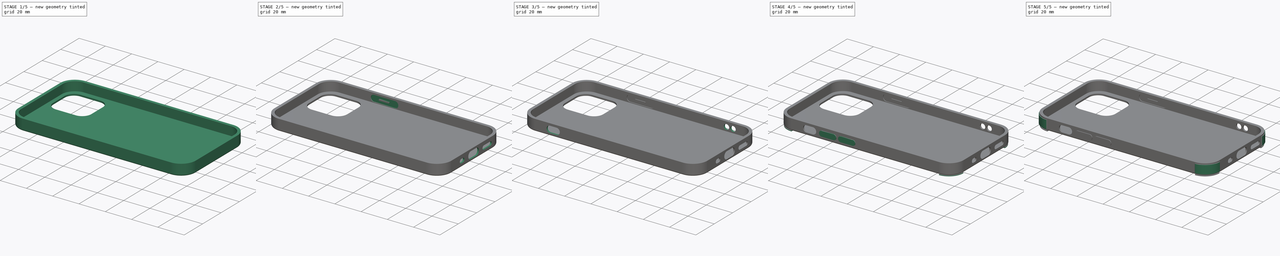
[diagram: build sequence overview — one tinted view per stage of 5, left to right]
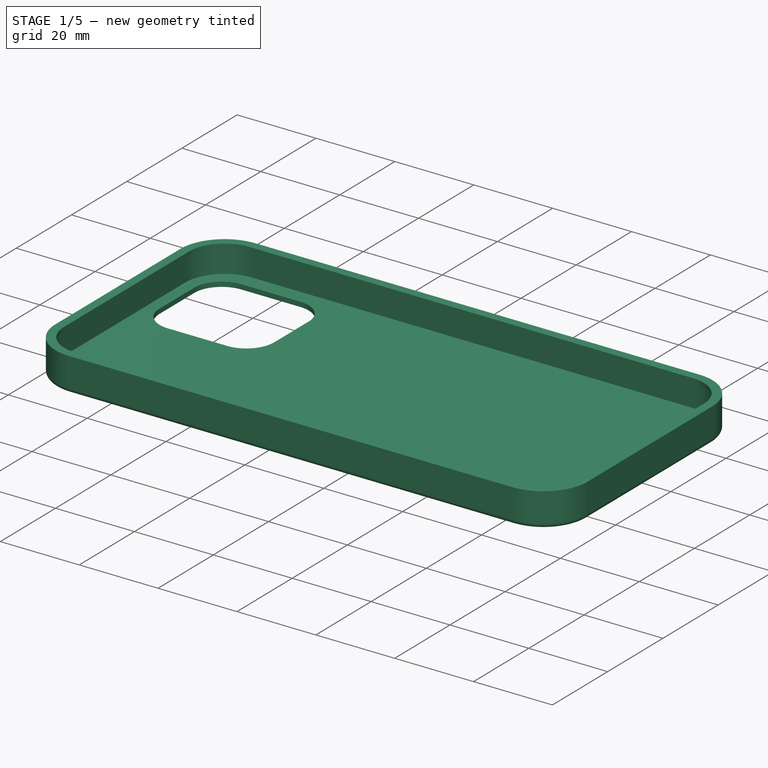
[diagram: stage 1 of 5 — iso view after this stage's code; geometry added in this stage tinted green]
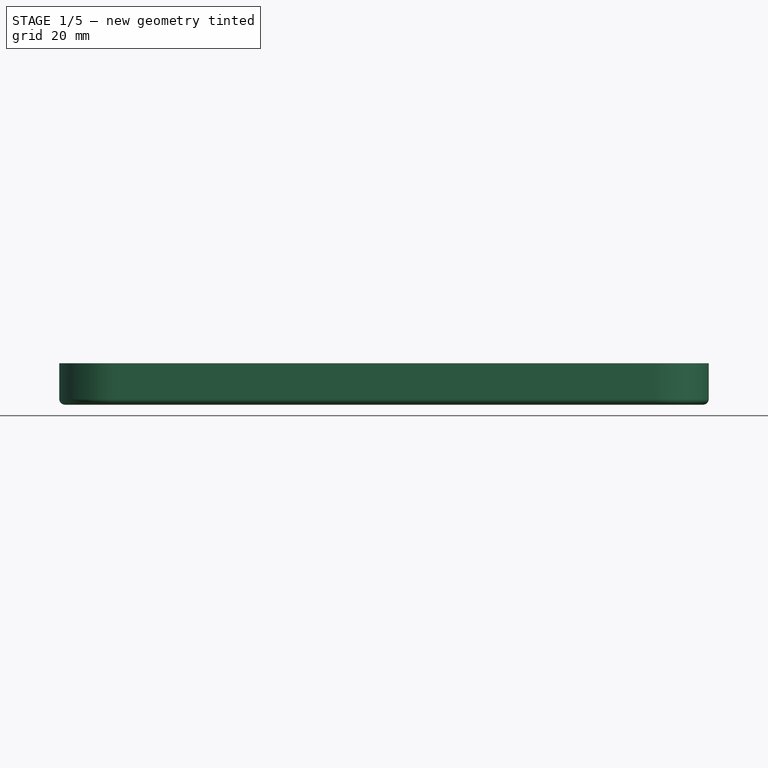
[diagram: stage 1 of 5 — front view after this stage's code; geometry added in this stage tinted green]
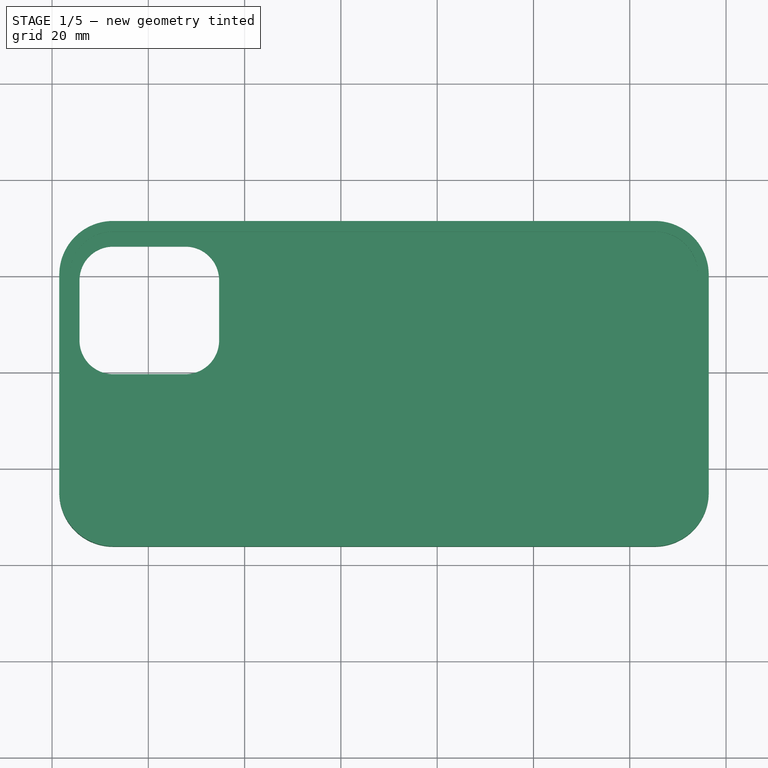
[diagram: stage 1 of 5 — top view after this stage's code; geometry added in this stage tinted green]
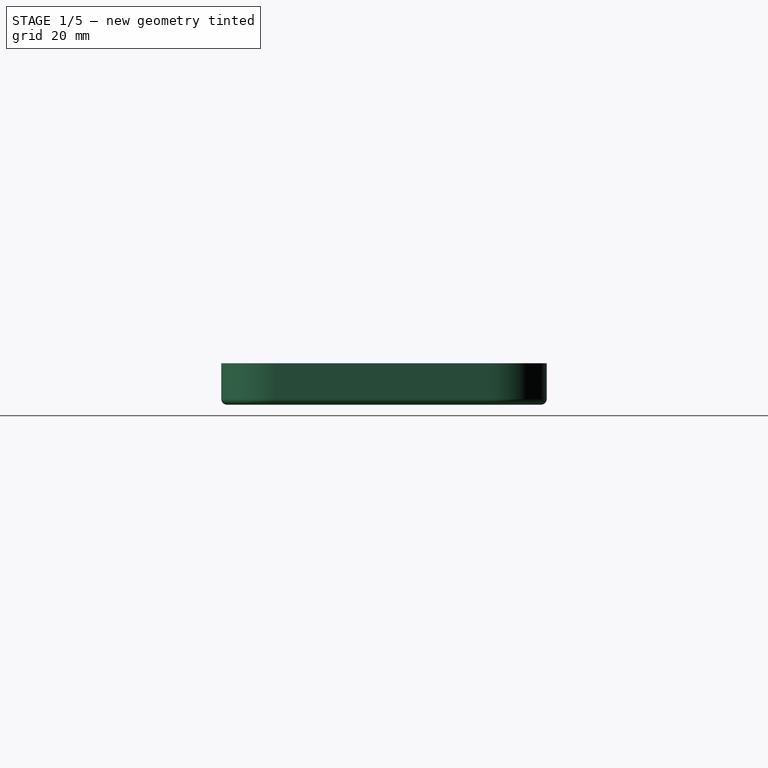
[diagram: stage 1 of 5 — right view after this stage's code; geometry added in this stage tinted green]
FCSTD DOCUMENT  (FreeCAD 0.19R23756 (Git))
Label: iPhone12mini+sakura+nyanko
License: All rights reserved
LicenseURL: http://en.wikipedia.org/wiki/All_rights_reserved
objects: Sketcher::SketchObject×14, PartDesign::Pad×12, PartDesign::Pocket×6, PartDesign::Thickness×1, PartDesign::Body×1
note: 53 computed .brp shape members not serialized (recipe doc carries the construction recipe); baked Part::Feature solids carry a one-line shape summary decoded from their .brp

FEATURE [Sketcher::SketchObject] Sketch001
  FullyConstrained = true
  MapMode = 5
  Support = -> [XY_Plane]
  sketch-geometry (8):
    g0: LineSegment StartX=-47.3 StartY=30.2 StartZ=0 EndX=65.2 EndY=30.2 EndZ=0
    g1: LineSegment StartX=75.2 StartY=20.2 StartZ=0 EndX=75.2 EndY=-25 EndZ=0
    g2: LineSegment StartX=65.2 StartY=-35 StartZ=0 EndX=-47.3 EndY=-35 EndZ=0
    g3: LineSegment StartX=-57.3 StartY=-25 StartZ=0 EndX=-57.3 EndY=20.2 EndZ=0
    g4: ArcOfCircle CenterX=65.2 CenterY=20.2 CenterZ=0 NormalX=0 NormalY=0 NormalZ=1 AngleXU=0 Radius=10 StartAngle=0 EndAngle=1.5708
    g5: ArcOfCircle CenterX=65.2 CenterY=-25 CenterZ=0 NormalX=0 NormalY=0 NormalZ=1 AngleXU=0 Radius=10 StartAngle=4.71239 EndAngle=6.28319
    g6: ArcOfCircle CenterX=-47.3 CenterY=-25 CenterZ=0 NormalX=0 NormalY=0 NormalZ=1 AngleXU=0 Radius=10 StartAngle=3.14159 EndAngle=4.71239
    g7: ArcOfCircle CenterX=-47.3 CenterY=20.2 CenterZ=0 NormalX=0 NormalY=0 NormalZ=1 AngleXU=0 Radius=10 StartAngle=1.5708 EndAngle=3.14159
  constraints (20):
    c: Horizontal(g0)
    c: Horizontal(g2)
    c: Vertical(g1)
    c: Vertical(g3)
    c: Tangent(g0,g4) = 1.5708
    c: Tangent(g1,g4) = 1.5708
    c: Tangent(g1,g5) = 1.5708
    c: Tangent(g2,g5) = 1.5708
    c: Tangent(g2,g6) = 1.5708
    c: Tangent(g3,g6) = 1.5708
    c: Tangent(g0,g7) = 1.5708
    c: Tangent(g3,g7) = 1.5708
    c: Radius(g4) = 10
    c: Radius(g5) = 10
    c: Radius(g6) = 10
    c: Radius(g7) = 10
    c: DistanceX(g3,g1) = 132.5
    c: DistanceX(g-1,g1) = 75.2
    c: DistanceY(g2,g0) = 65.2
    c: DistanceY(g2,g-1) = 35
FEATURE [PartDesign::Pad] Pad
  Direction = (1,1,1)
  Length = 7.4
  Length2 = 100
  Profile = -> Sketch001
  Type = 0
FEATURE [PartDesign::Thickness] Thickness
  Base = -> Pad [Face10]
  BaseFeature = -> Pad
  Intersection = false
  Join = 0
  Mode = 0
  SupportTransform = false
  Value = 1.2
FEATURE [Sketcher::SketchObject] Sketch002
  ExternalGeometry = -> [Thickness]
  FullyConstrained = true
  MapMode = 5
  Placement = pos=(0,0,7.4) rot=(0,0,1;0rad)
  Support = -> [Thickness]
  sketch-geometry (16):
    g0: LineSegment StartX=-47.3 StartY=31.4 StartZ=0 EndX=65.2 EndY=31.4 EndZ=0
    g1: LineSegment StartX=76.4 StartY=20.2 StartZ=0 EndX=76.4 EndY=-25 EndZ=0
    g2: LineSegment StartX=65.2 StartY=-36.2 StartZ=0 EndX=-47.3 EndY=-36.2 EndZ=0
    g3: LineSegment StartX=-58.5 StartY=-25 StartZ=0 EndX=-58.5 EndY=20.2 EndZ=0
    g4: ArcOfCircle CenterX=65.2 CenterY=20.2 CenterZ=0 NormalX=0 NormalY=0 NormalZ=1 AngleXU=0 Radius=11.2 StartAngle=2.387e-13 EndAngle=1.5708
    g5: ArcOfCircle CenterX=65.2 CenterY=-25 CenterZ=0 NormalX=0 NormalY=0 NormalZ=1 AngleXU=0 Radius=11.2 StartAngle=4.71239 EndAngle=6.28319
    g6: ArcOfCircle CenterX=-47.3 CenterY=-25 CenterZ=0 NormalX=0 NormalY=0 NormalZ=1 AngleXU=0 Radius=11.2 StartAngle=3.14159 EndAngle=4.71239
    g7: ArcOfCircle CenterX=-47.3 CenterY=20.2 CenterZ=0 NormalX=0 NormalY=0 NormalZ=1 AngleXU=0 Radius=11.2 StartAngle=1.5708 EndAngle=3.14159
    g8: LineSegment StartX=-47.3 StartY=29.2 StartZ=0 EndX=65.2 EndY=29.2 EndZ=0
    g9: LineSegment StartX=74.2 StartY=20.2 StartZ=0 EndX=74.2 EndY=-25 EndZ=0
    g10: LineSegment StartX=65.2 StartY=-34 StartZ=0 EndX=-47.3 EndY=-34 EndZ=0
    g11: LineSegment StartX=-56.3 StartY=-25 StartZ=0 EndX=-56.3 EndY=20.2 EndZ=0
    g12: ArcOfCircle CenterX=65.2 CenterY=20.2 CenterZ=0 NormalX=0 NormalY=0 NormalZ=1 AngleXU=0 Radius=9 StartAngle=0 EndAngle=1.5708
    g13: ArcOfCircle CenterX=65.2 CenterY=-25 CenterZ=0 NormalX=0 NormalY=0 NormalZ=1 AngleXU=0 Radius=9 StartAngle=4.71239 EndAngle=6.28319
    g14: ArcOfCircle CenterX=-47.3 CenterY=-25 CenterZ=0 NormalX=0 NormalY=0 NormalZ=1 AngleXU=0 Radius=9 StartAngle=3.14159 EndAngle=4.71239
    g15: ArcOfCircle CenterX=-47.3 CenterY=20.2 CenterZ=0 NormalX=0 NormalY=0 NormalZ=1 AngleXU=0 Radius=9 StartAngle=1.5708 EndAngle=3.14159
  constraints (31):
    c: Horizontal(g2)
    c: Vertical(g3)
    c: Tangent(g0,g4) = 1.5708
    c: Tangent(g1,g4) = 1.5708
    c: Tangent(g1,g5) = 1.5708
    c: Tangent(g2,g5) = 1.5708
    c: Tangent(g2,g6) = 1.5708
    c: Tangent(g3,g6) = 1.5708
    c: Tangent(g0,g7) = 1.5708
    c: Tangent(g3,g7) = 1.5708
    c: Coincident(g-7,g0)
    c: Coincident(g-8,g0)
    c: Coincident(g1,g-9)
    c: Coincident(g-10,g5)
    c: Coincident(g6,g-4)
    c: Horizontal(g8)
    c: Horizontal(g10)
    c: Vertical(g9)
    c: Tangent(g8,g12) = 1.5708
    c: Tangent(g9,g12) = 1.5708
    c: Tangent(g9,g13) = 1.5708
    c: Tangent(g10,g13) = 1.5708
    c: Tangent(g10,g14) = 1.5708
    c: Tangent(g11,g14) = 1.5708
    c: Tangent(g8,g15) = 1.5708
    c: Tangent(g11,g15) = 1.5708
    c: Coincident(g15,g7)
    c: DistanceX(g3,g11) = 2.2
    c: Coincident(g4,g12)
    c: Coincident(g5,g13)
    c: Coincident(g14,g6)
FEATURE [PartDesign::Pad] Pad001  label="Pad Base"
  BaseFeature = -> Thickness
  Direction = (1,1,1)
  Length = 1
  Length2 = 100
  Profile = -> Sketch002
  Reversed = true
  Type = 0
FEATURE [Sketcher::SketchObject] Sketch004  label="Sketch Camera"
  ExternalGeometry = -> [Pad001]
  FullyConstrained = true
  MapMode = 5
  Support = -> [Pad001]
  sketch-geometry (8):
    g0: LineSegment StartX=-47.3 StartY=26.2 StartZ=0 EndX=-32.3 EndY=26.2 EndZ=0
    g1: LineSegment StartX=-25.3 StartY=19.2 StartZ=0 EndX=-25.3 EndY=6.7 EndZ=0
    g2: LineSegment StartX=-32.3 StartY=-0.3 StartZ=0 EndX=-47.3 EndY=-0.3 EndZ=0
    g3: LineSegment StartX=-54.3 StartY=6.7 StartZ=0 EndX=-54.3 EndY=19.2 EndZ=0
    g4: ArcOfCircle CenterX=-32.3 CenterY=19.2 CenterZ=0 NormalX=0 NormalY=0 NormalZ=1 AngleXU=0 Radius=7 StartAngle=0 EndAngle=1.5708
    g5: ArcOfCircle CenterX=-32.3 CenterY=6.7 CenterZ=0 NormalX=0 NormalY=0 NormalZ=1 AngleXU=0 Radius=7 StartAngle=4.71239 EndAngle=6.28319
    g6: ArcOfCircle CenterX=-47.3 CenterY=6.7 CenterZ=0 NormalX=0 NormalY=0 NormalZ=1 AngleXU=0 Radius=7 StartAngle=3.14159 EndAngle=4.71239
    g7: ArcOfCircle CenterX=-47.3 CenterY=19.2 CenterZ=0 NormalX=0 NormalY=0 NormalZ=1 AngleXU=0 Radius=7 StartAngle=1.5708 EndAngle=3.14159
  constraints (20):
    c: Horizontal(g0)
    c: Horizontal(g2)
    c: Vertical(g1)
    c: Vertical(g3)
    c: Tangent(g0,g4) = 1.5708
    c: Tangent(g1,g4) = 1.5708
    c: Tangent(g1,g5) = 1.5708
    c: Tangent(g2,g5) = 1.5708
    c: Tangent(g2,g6) = 1.5708
    c: Tangent(g3,g6) = 1.5708
    c: Tangent(g0,g7) = 1.5708
    c: Tangent(g3,g7) = 1.5708
    c: Radius(g4) = 7
    c: Radius(g5) = 7
    c: Radius(g6) = 7
    c: Radius(g7) = 7
    c: DistanceY(g2,g0) = 26.5
    c: DistanceX(g3,g1) = 29
    c: DistanceY(g0,g-3) = 3
    c: DistanceX(g-6,g3) = 2
FEATURE [PartDesign::Pocket] Pocket001  label="Camera"
  BaseFeature = -> Pad001
  Length = 5
  Length2 = 100
  Profile = -> Sketch004
  Type = 0
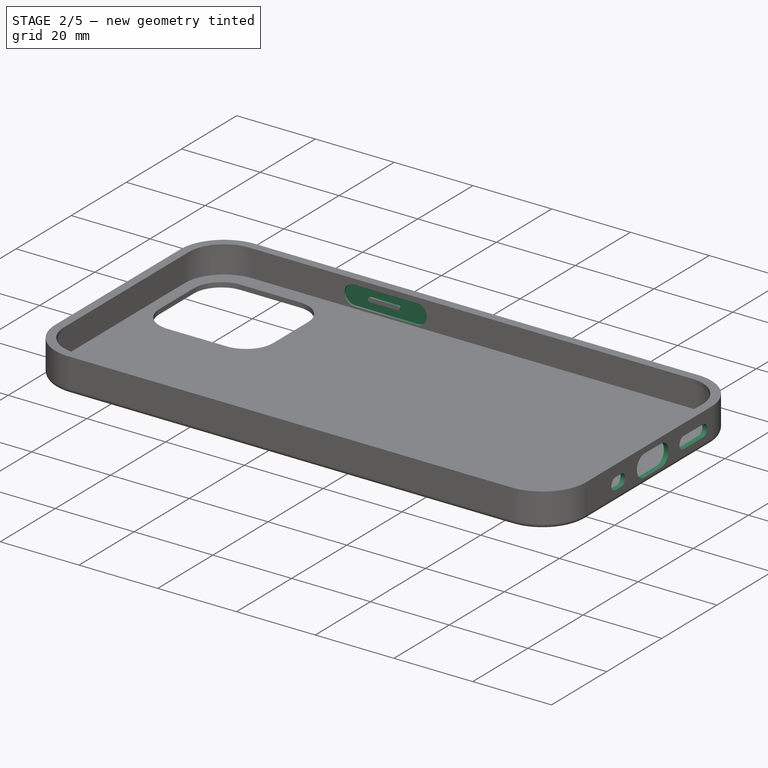
[diagram: stage 2 of 5 — iso view after this stage's code; geometry added in this stage tinted green]
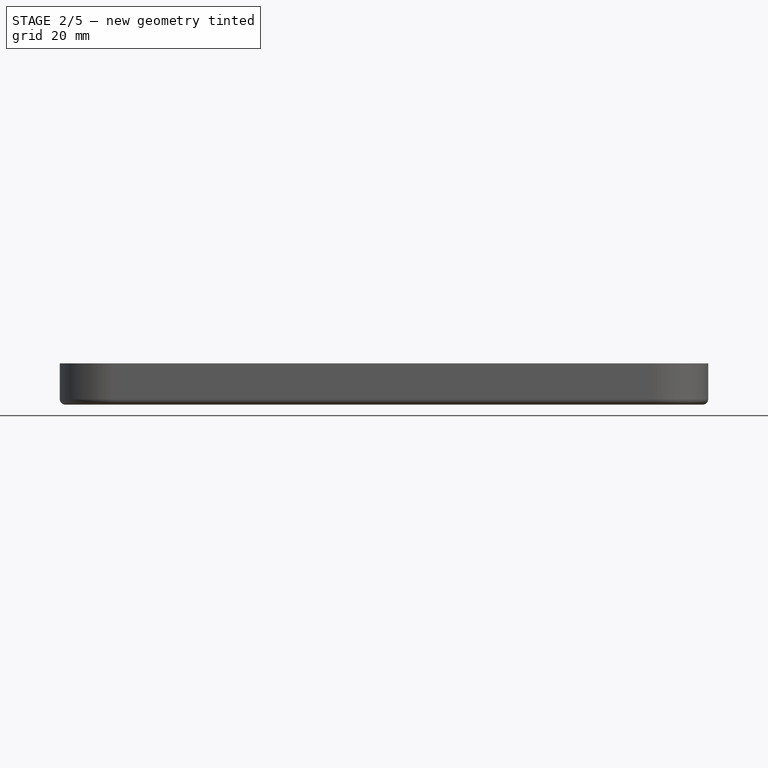
[diagram: stage 2 of 5 — front view after this stage's code; geometry added in this stage tinted green]
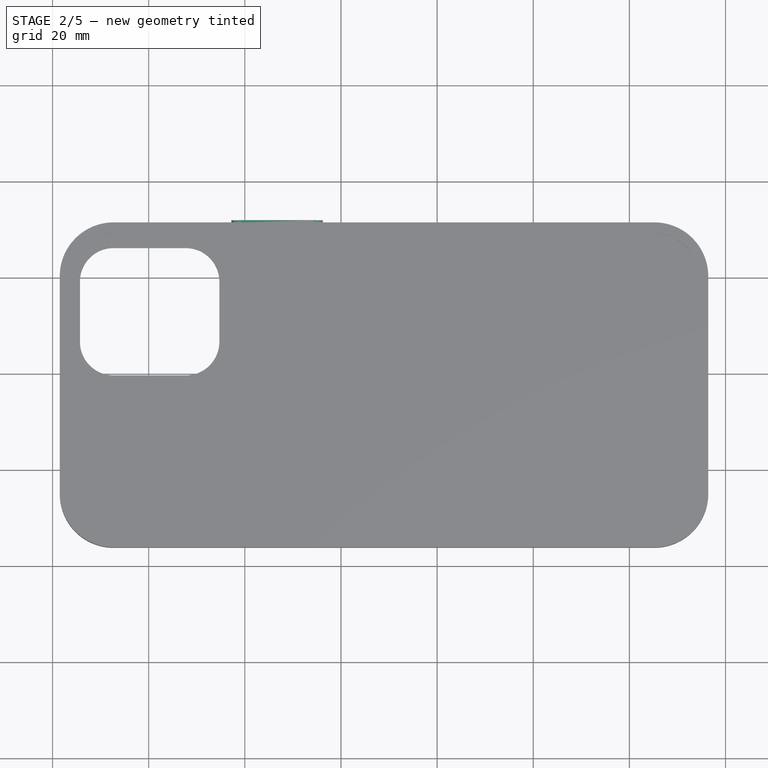
[diagram: stage 2 of 5 — top view after this stage's code; geometry added in this stage tinted green]
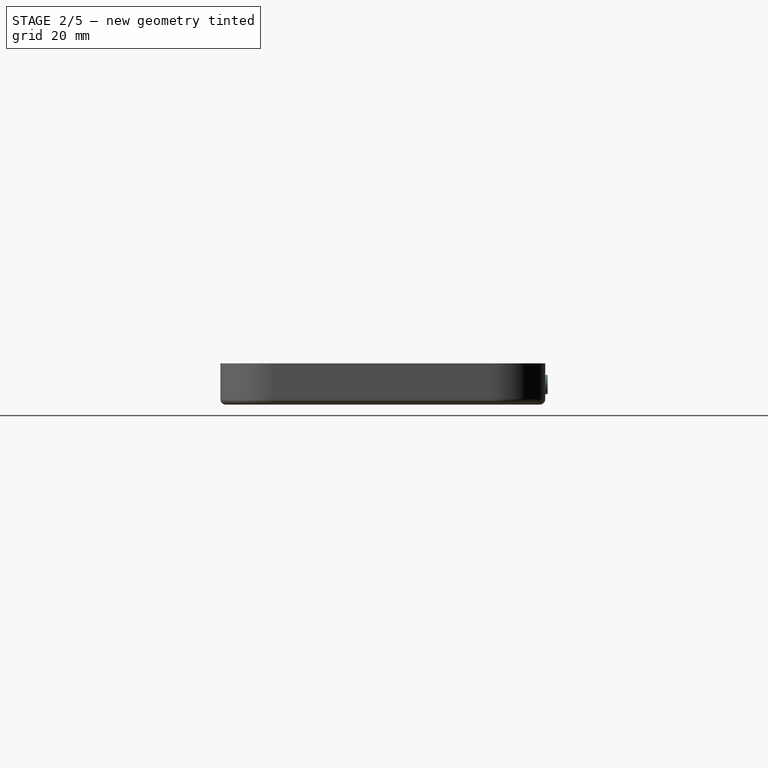
[diagram: stage 2 of 5 — right view after this stage's code; geometry added in this stage tinted green]
FEATURE [Sketcher::SketchObject] Sketch005  label="Righit Side"
  ExternalGeometry = -> [Pocket001]
  FullyConstrained = true
  MapMode = 5
  Placement = pos=(0,31.4,0) rot=(0,0.707107,0.707107;3.14159rad)
  Support = -> [Pocket001]
  sketch-geometry (4):
    g0: ArcOfCircle CenterX=5.8 CenterY=3 CenterZ=0 NormalX=0 NormalY=0 NormalZ=1 AngleXU=0 Radius=2 StartAngle=1.5708 EndAngle=4.71239
    g1: ArcOfCircle CenterX=20.8 CenterY=3 CenterZ=0 NormalX=0 NormalY=0 NormalZ=1 AngleXU=0 Radius=2 StartAngle=4.71239 EndAngle=7.85398
    g2: LineSegment StartX=5.8 StartY=1 StartZ=0 EndX=20.8 EndY=1 EndZ=0
    g3: LineSegment StartX=5.8 StartY=5 StartZ=0 EndX=20.8 EndY=5 EndZ=0
  constraints (10):
    c: Tangent(g0,g3) = 1.5708
    c: Tangent(g0,g2) = -1.5708
    c: Tangent(g2,g1) = -1.5708
    c: Tangent(g3,g1) = 1.5708
    c: Horizontal(g2)
    c: Equal(g0,g1)
    c: DistanceX(g0,g1) = 15
    c: DistanceY(g1,g1) = 4
    c: DistanceY(g-6,g1) = 1
    c: DistanceX(g1,g-5) = 26.5
FEATURE [Sketcher::SketchObject] Sketch006  label="Sketch Down Side"
  ExternalGeometry = -> [Pocket001]
  FullyConstrained = true
  MapMode = 5
  Placement = pos=(76.4,0,0) rot=(0.57735,0.57735,0.57735;2.0944rad)
  Support = -> [Pocket001]
  sketch-geometry (12):
    g0: ArcOfCircle CenterX=-14.5 CenterY=3 CenterZ=0 NormalX=0 NormalY=0 NormalZ=1 AngleXU=0 Radius=1.5 StartAngle=1.5708 EndAngle=4.71239
    g1: ArcOfCircle CenterX=-12.5 CenterY=3 CenterZ=0 NormalX=0 NormalY=0 NormalZ=1 AngleXU=0 Radius=1.5 StartAngle=4.71239 EndAngle=7.85398
    g2: LineSegment StartX=-14.5 StartY=1.5 StartZ=0 EndX=-12.5 EndY=1.5 EndZ=0
    g3: LineSegment StartX=-14.5 StartY=4.5 StartZ=0 EndX=-12.5 EndY=4.5 EndZ=0
    g4: ArcOfCircle CenterX=-4 CenterY=3.15 CenterZ=0 NormalX=0 NormalY=0 NormalZ=1 AngleXU=0 Radius=2.75 StartAngle=1.5708 EndAngle=4.71239
    g5: ArcOfCircle CenterX=2 CenterY=3.15 CenterZ=0 NormalX=0 NormalY=0 NormalZ=1 AngleXU=0 Radius=2.75 StartAngle=4.71239 EndAngle=7.85398
    g6: LineSegment StartX=-4 StartY=0.4 StartZ=0 EndX=2 EndY=0.4 EndZ=0
    g7: LineSegment StartX=-4 StartY=5.9 StartZ=0 EndX=2 EndY=5.9 EndZ=0
    g8: ArcOfCircle CenterX=10.2 CenterY=3 CenterZ=0 NormalX=0 NormalY=0 NormalZ=1 AngleXU=0 Radius=1.5 StartAngle=1.5708 EndAngle=4.71239
    g9: ArcOfCircle CenterX=17.2 CenterY=3 CenterZ=0 NormalX=0 NormalY=0 NormalZ=1 AngleXU=0 Radius=1.5 StartAngle=4.71239 EndAngle=7.85398
    g10: LineSegment StartX=10.2 StartY=1.5 StartZ=0 EndX=17.2 EndY=1.5 EndZ=0
    g11: LineSegment StartX=10.2 StartY=4.5 StartZ=0 EndX=17.2 EndY=4.5 EndZ=0
  constraints (31):
    c: Tangent(g0,g3) = 1.5708
    c: Tangent(g0,g2) = -1.5708
    c: Tangent(g2,g1) = -1.5708
    c: Tangent(g3,g1) = 1.5708
    c: Horizontal(g2)
    c: Equal(g0,g1)
    c: Tangent(g4,g7) = 1.5708
    c: Tangent(g4,g6) = -1.5708
    c: Tangent(g6,g5) = -1.5708
    c: Tangent(g7,g5) = 1.5708
    c: Horizontal(g6)
    c: Equal(g4,g5)
    c: Tangent(g8,g11) = 1.5708
    c: Tangent(g8,g10) = -1.5708
    c: Tangent(g10,g9) = -1.5708
    c: Tangent(g11,g9) = 1.5708
    c: Horizontal(g10)
    c: Equal(g8,g9)
    c: DistanceX(g-6,g4) = 21
    c: DistanceX(g4,g5) = 6
    c: DistanceY(g5,g5) = 5.5
    c: DistanceY(g5,g-4) = 0.5
    c: DistanceX(g-6,g0) = 10.5
    c: DistanceX(g0,g1) = 2
    c: DistanceX(g9,g-4) = 3
    c: DistanceX(g8,g9) = 7
    c: DistanceY(g-6,g0) = 1.5
    c: DistanceY(g9,g9) = 3
    c: DistanceY(g-5,g9) = 1.5
    c: DistanceY(g0,g0) = 3
    c: DistanceX(g-6,g-6) = 0
FEATURE [PartDesign::Pocket] Pocket002  label="Down Side"
  BaseFeature = -> Pocket001
  Length = 5
  Length2 = 100
  Profile = -> Sketch006
  Type = 0
FEATURE [Sketcher::SketchObject] Sketch007  label="Sketch Left Side"
  ExternalGeometry = -> [Pocket002]
  FullyConstrained = true
  MapMode = 5
  Placement = pos=(0,-36.2,0) rot=(1,0,0;1.5708rad)
  Support = -> [Pocket002]
  sketch-geometry (4):
    g0: ArcOfCircle CenterX=-35.8 CenterY=3.2 CenterZ=0 NormalX=0 NormalY=0 NormalZ=1 AngleXU=0 Radius=2.5 StartAngle=1.5708 EndAngle=4.71239
    g1: ArcOfCircle CenterX=-30.8 CenterY=3.2 CenterZ=0 NormalX=0 NormalY=0 NormalZ=1 AngleXU=0 Radius=2.5 StartAngle=4.71239 EndAngle=7.85398
    g2: LineSegment StartX=-35.8 StartY=0.7 StartZ=0 EndX=-30.8 EndY=0.7 EndZ=0
    g3: LineSegment StartX=-35.8 StartY=5.7 StartZ=0 EndX=-30.8 EndY=5.7 EndZ=0
  constraints (10):
    c: Tangent(g0,g3) = 1.5708
    c: Tangent(g0,g2) = -1.5708
    c: Tangent(g2,g1) = -1.5708
    c: Tangent(g3,g1) = 1.5708
    c: Horizontal(g2)
    c: Equal(g0,g1)
    c: DistanceX(g0,g1) = 5
    c: DistanceX(g-6,g0) = 11.5
    c: DistanceY(g0,g0) = 5
    c: DistanceY(g-6,g0) = 0.7
FEATURE [Sketcher::SketchObject] Sketch008  label="Sketch Right Inside"
  ExternalGeometry = -> [Pocket002,Pad001]
  FullyConstrained = true
  MapMode = 5
  Placement = pos=(0,30.2,0) rot=(1,0,0;1.5708rad)
  Support = -> [Pocket002]
  sketch-geometry (4):
    g0: ArcOfCircle CenterX=-21.3 CenterY=3 CenterZ=0 NormalX=0 NormalY=0 NormalZ=1 AngleXU=0 Radius=2.5 StartAngle=1.5708 EndAngle=4.71239
    g1: ArcOfCircle CenterX=-5.3 CenterY=3 CenterZ=0 NormalX=0 NormalY=0 NormalZ=1 AngleXU=0 Radius=2.5 StartAngle=4.71239 EndAngle=7.85398
    g2: LineSegment StartX=-21.3 StartY=0.5 StartZ=0 EndX=-5.3 EndY=0.5 EndZ=0
    g3: LineSegment StartX=-21.3 StartY=5.5 StartZ=0 EndX=-5.3 EndY=5.5 EndZ=0
  constraints (10):
    c: Tangent(g0,g3) = 1.5708
    c: Tangent(g0,g2) = -1.5708
    c: Tangent(g2,g1) = -1.5708
    c: Tangent(g3,g1) = 1.5708
    c: Horizontal(g2)
    c: Equal(g0,g1)
    c: DistanceX(g-6,g0) = 26
    c: DistanceY(g-7,g0) = 0.5
    c: DistanceY(g0,g0) = 2.5
    c: DistanceX(g0,g1) = 16
FEATURE [PartDesign::Pocket] Pocket003  label="Pocket Righit Inside"
  BaseFeature = -> Pocket002
  Length = 0.5
  Length2 = 100
  Profile = -> Sketch008
  Type = 0
FEATURE [PartDesign::Pad] Pad002  label="Pad Right Side"
  BaseFeature = -> Pocket003
  Direction = (1,1,1)
  Length = 0.5
  Length2 = 100
  Profile = -> Sketch005
  Type = 0
FEATURE [Sketcher::SketchObject] Sketch009  label="Sketch Right Inside02"
  ExternalGeometry = -> [Pad002]
  FullyConstrained = true
  MapMode = 5
  Placement = pos=(0,30.7,0) rot=(1,0,0;1.5708rad)
  Support = -> [Pad002]
  sketch-geometry (4):
    g0: ArcOfCircle CenterX=-17.3 CenterY=3 CenterZ=0 NormalX=0 NormalY=0 NormalZ=1 AngleXU=0 Radius=0.5 StartAngle=1.5708 EndAngle=4.71239
    g1: ArcOfCircle CenterX=-10.3 CenterY=3 CenterZ=0 NormalX=0 NormalY=0 NormalZ=1 AngleXU=0 Radius=0.5 StartAngle=4.71239 EndAngle=7.85398
    g2: LineSegment StartX=-17.3 StartY=2.5 StartZ=0 EndX=-10.3 EndY=2.5 EndZ=0
    g3: LineSegment StartX=-17.3 StartY=3.5 StartZ=0 EndX=-10.3 EndY=3.5 EndZ=0
  constraints (10):
    c: Tangent(g0,g3) = 1.5708
    c: Tangent(g0,g2) = -1.5708
    c: Tangent(g2,g1) = -1.5708
    c: Tangent(g3,g1) = 1.5708
    c: Horizontal(g2)
    c: Equal(g0,g1)
    c: DistanceX(g0,g1) = 7
    c: DistanceX(g1,g-6) = 5
    c: DistanceY(g0,g0) = 1
    c: DistanceY(g-5,g0) = 2
FEATURE [PartDesign::Pad] Pad003  label="Pad Right Inside"
  BaseFeature = -> Pad002
  Direction = (1,1,1)
  Length = 0.5
  Length2 = 100
  Profile = -> Sketch009
  Type = 0
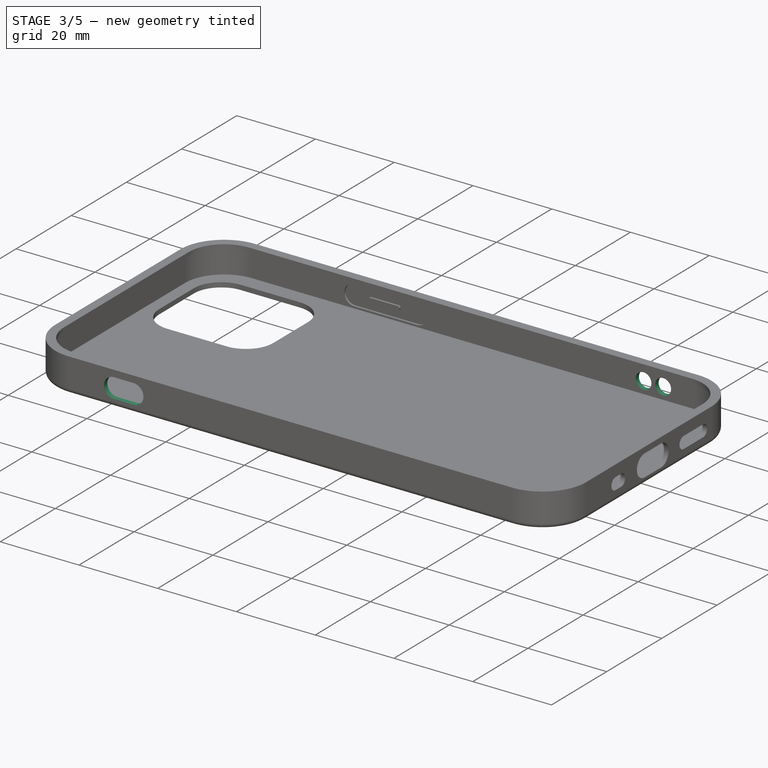
[diagram: stage 3 of 5 — iso view after this stage's code; geometry added in this stage tinted green]
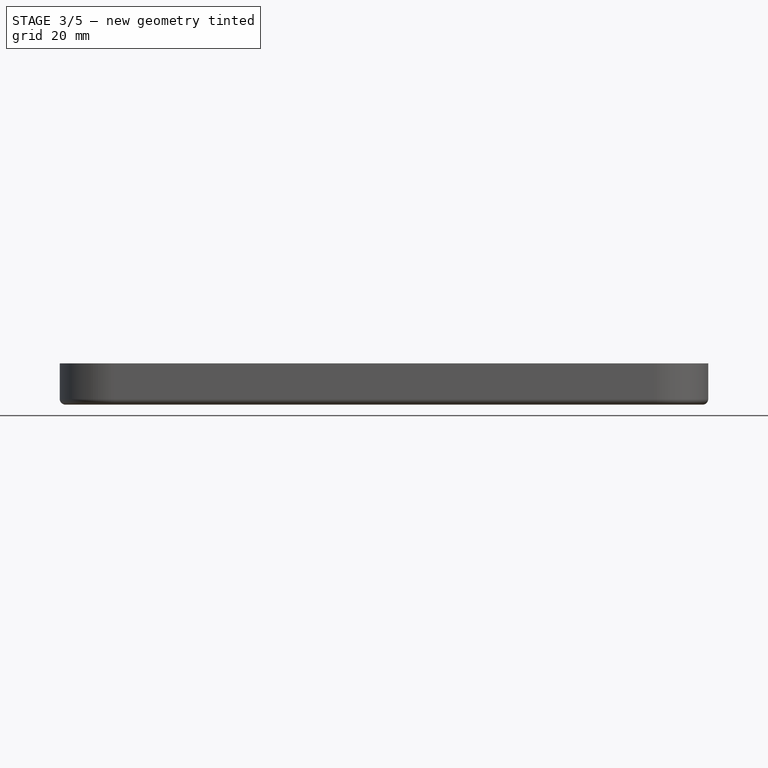
[diagram: stage 3 of 5 — front view after this stage's code; geometry added in this stage tinted green]
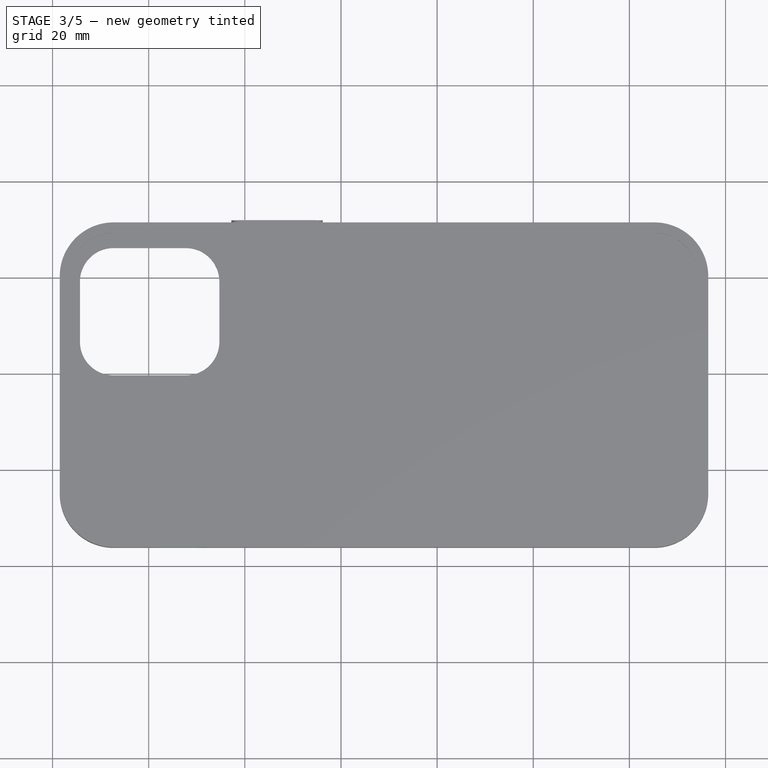
[diagram: stage 3 of 5 — top view after this stage's code; geometry added in this stage tinted green]
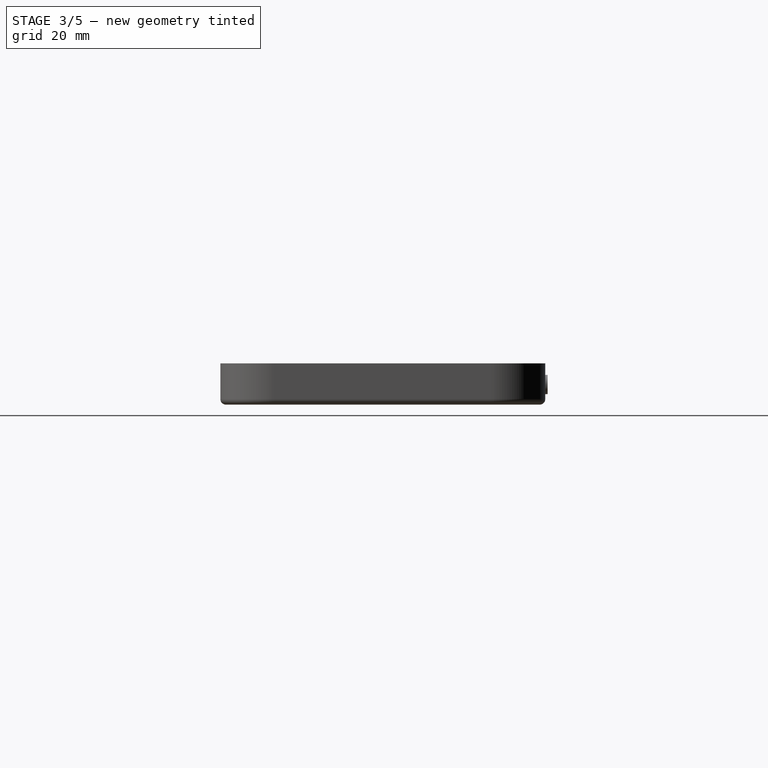
[diagram: stage 3 of 5 — right view after this stage's code; geometry added in this stage tinted green]
FEATURE [Sketcher::SketchObject] Sketch010  label="Sketch Strap"
  ExternalGeometry = -> [Pad003]
  FullyConstrained = true
  MapMode = 5
  Placement = pos=(0,31.4,0) rot=(0,0.707107,0.707107;3.14159rad)
  Support = -> [Pad003]
  sketch-geometry (2):
    g0: Circle CenterX=-57.2 CenterY=3 CenterZ=0 NormalX=0 NormalY=0 NormalZ=1 AngleXU=0 Radius=2
    g1: Circle CenterX=-52.2 CenterY=3 CenterZ=0 NormalX=0 NormalY=0 NormalZ=1 AngleXU=0 Radius=2
  constraints (6):
    c: Radius(g0) = 2
    c: Radius(g1) = 2
    c: DistanceX(g-6,g0) = 8
    c: DistanceX(g0,g1) = 5
    c: DistanceY(g-6,g0) = 3
    c: DistanceY(g-6,g1) = 3
FEATURE [PartDesign::Pocket] Pocket004  label="Pocket Strap"
  BaseFeature = -> Pad003
  Length = 5
  Length2 = 100
  Profile = -> Sketch010
  Type = 0
FEATURE [PartDesign::Pocket] Pocket005  label="Pocket Left Side"
  BaseFeature = -> Pocket004
  Length = 5
  Length2 = 100
  Profile = -> Sketch007
  Type = 0
FEATURE [Sketcher::SketchObject] Sketch012  label="Sketch Left Inside"
  ExternalGeometry = -> [Pocket005]
  FullyConstrained = true
  MapMode = 5
  Placement = pos=(0,-35,0) rot=(0,0.707107,0.707107;3.14159rad)
  Support = -> [Pocket005]
  sketch-geometry (4):
    g0: ArcOfCircle CenterX=0.8 CenterY=3.2 CenterZ=0 NormalX=0 NormalY=0 NormalZ=1 AngleXU=0 Radius=2.5 StartAngle=1.5708 EndAngle=4.71239
    g1: ArcOfCircle CenterX=23.8 CenterY=3.2 CenterZ=0 NormalX=0 NormalY=0 NormalZ=1 AngleXU=0 Radius=2.5 StartAngle=4.71239 EndAngle=7.85398
    g2: LineSegment StartX=0.8 StartY=0.7 StartZ=0 EndX=23.8 EndY=0.7 EndZ=0
    g3: LineSegment StartX=0.8 StartY=5.7 StartZ=0 EndX=23.8 EndY=5.7 EndZ=0
  constraints (10):
    c: Tangent(g0,g3) = 1.5708
    c: Tangent(g0,g2) = -1.5708
    c: Tangent(g2,g1) = -1.5708
    c: Tangent(g3,g1) = 1.5708
    c: Horizontal(g2)
    c: Equal(g0,g1)
    c: DistanceX(g0,g1) = 23
    c: DistanceX(g1,g-4) = 23.5
    c: DistanceY(g1,g1) = 5
    c: DistanceY(g-5,g1) = 0.7
FEATURE [PartDesign::Pocket] Pocket006  label="Pocket Left Inside"
  BaseFeature = -> Pocket005
  Length = 0.5
  Length2 = 100
  Profile = -> Sketch012
  Type = 0
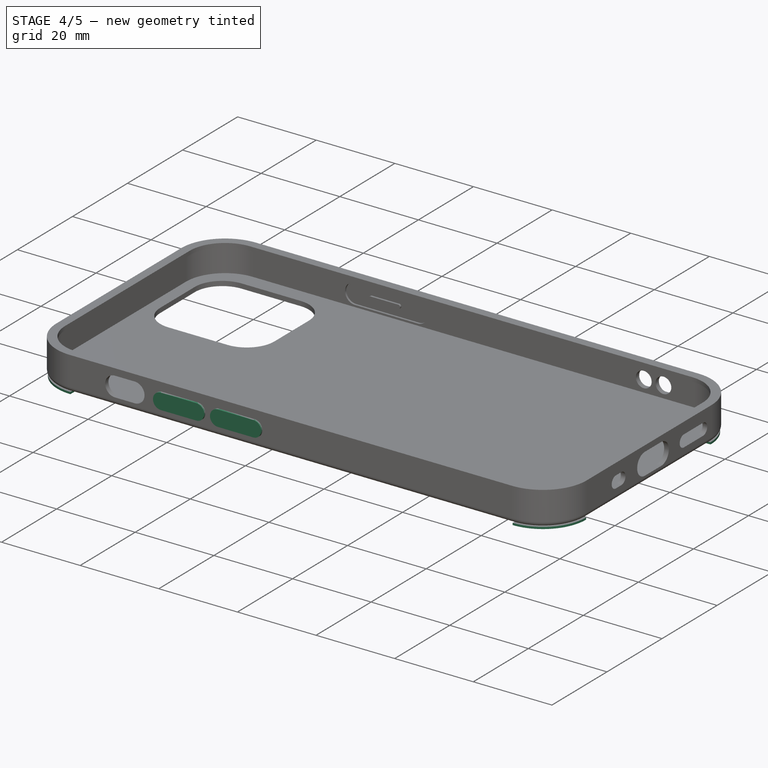
[diagram: stage 4 of 5 — iso view after this stage's code; geometry added in this stage tinted green]
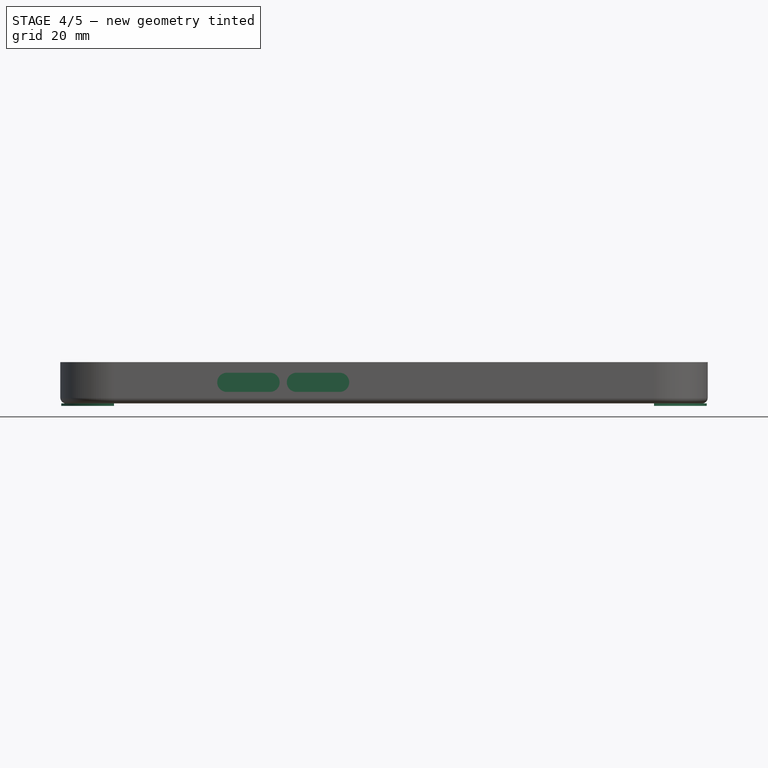
[diagram: stage 4 of 5 — front view after this stage's code; geometry added in this stage tinted green]
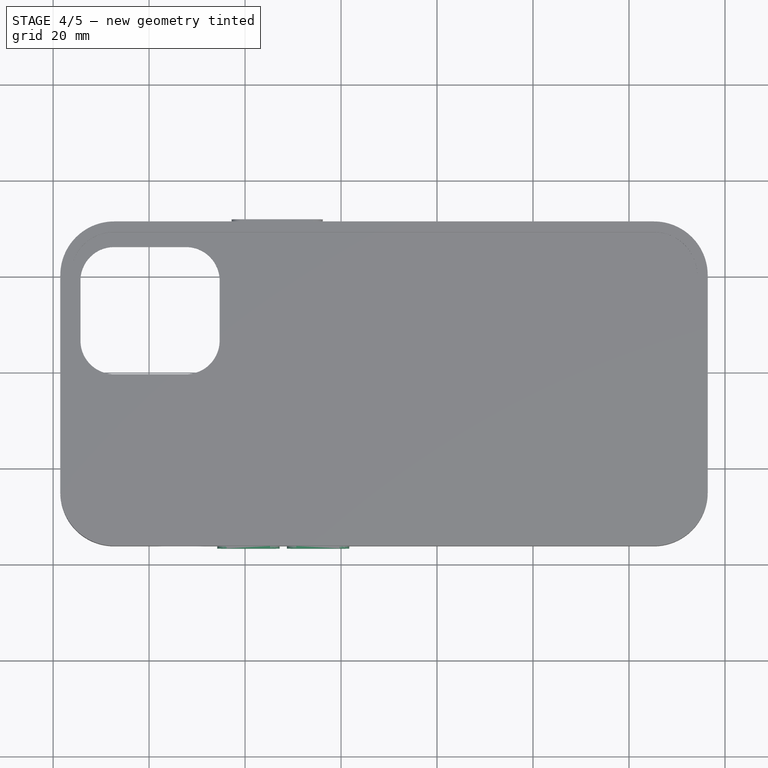
[diagram: stage 4 of 5 — top view after this stage's code; geometry added in this stage tinted green]
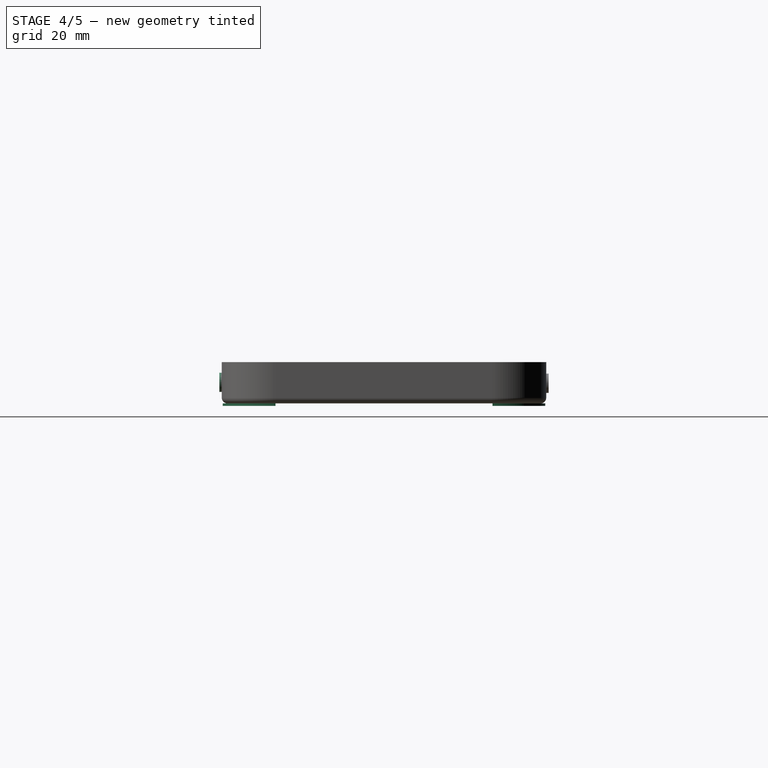
[diagram: stage 4 of 5 — right view after this stage's code; geometry added in this stage tinted green]
FEATURE [Sketcher::SketchObject] Sketch  label="Sketch Left Side2"
  ExternalGeometry = -> [Pad001]
  FullyConstrained = true
  MapMode = 5
  Placement = pos=(0,-36.2,0) rot=(1,0,0;1.5708rad)
  Support = -> [Pocket006]
  sketch-geometry (8):
    g0: ArcOfCircle CenterX=-9.3 CenterY=3.2 CenterZ=0 NormalX=0 NormalY=0 NormalZ=1 AngleXU=0 Radius=2 StartAngle=1.5708 EndAngle=4.71239
    g1: ArcOfCircle CenterX=-0.3 CenterY=3.2 CenterZ=0 NormalX=0 NormalY=0 NormalZ=1 AngleXU=0 Radius=2 StartAngle=4.71239 EndAngle=7.85398
    g2: LineSegment StartX=-9.3 StartY=1.2 StartZ=0 EndX=-0.3 EndY=1.2 EndZ=0
    g3: LineSegment StartX=-9.3 StartY=5.2 StartZ=0 EndX=-0.3 EndY=5.2 EndZ=0
    g4: ArcOfCircle CenterX=-23.8 CenterY=3.2 CenterZ=0 NormalX=0 NormalY=0 NormalZ=1 AngleXU=0 Radius=2 StartAngle=1.5708 EndAngle=4.71239
    g5: ArcOfCircle CenterX=-14.8 CenterY=3.2 CenterZ=0 NormalX=0 NormalY=0 NormalZ=1 AngleXU=0 Radius=2 StartAngle=4.71239 EndAngle=7.85398
    g6: LineSegment StartX=-23.8 StartY=1.2 StartZ=0 EndX=-14.8 EndY=1.2 EndZ=0
    g7: LineSegment StartX=-23.8 StartY=5.2 StartZ=0 EndX=-14.8 EndY=5.2 EndZ=0
  constraints (20):
    c: Tangent(g0,g3) = 1.5708
    c: Tangent(g0,g2) = -1.5708
    c: Tangent(g2,g1) = -1.5708
    c: Tangent(g3,g1) = 1.5708
    c: Horizontal(g2)
    c: Equal(g0,g1)
    c: Tangent(g4,g7) = 1.5708
    c: Tangent(g4,g6) = -1.5708
    c: Tangent(g6,g5) = -1.5708
    c: Tangent(g7,g5) = 1.5708
    c: Horizontal(g6)
    c: Equal(g4,g5)
    c: DistanceX(g0,g1) = 9
    c: DistanceX(g4,g5) = 9
    c: DistanceY(g0,g0) = 4
    c: DistanceY(g4,g4) = 4
    c: DistanceY(g-6,g0) = 1.2
    c: DistanceY(g-6,g4) = 1.2
    c: DistanceX(g-4,g4) = 23.5
    c: DistanceX(g-4,g0) = 38
FEATURE [PartDesign::Pad] Pad004  label="Pad Left Side2"
  BaseFeature = -> Pocket006
  Direction = (1,1,1)
  Length = 0.5
  Length2 = 100
  Profile = -> Sketch
  Type = 0
FEATURE [Sketcher::SketchObject] Sketch013  label="Sketch Left Inside2"
  ExternalGeometry = -> [Pad004]
  FullyConstrained = true
  MapMode = 5
  Placement = pos=(0,-35.5,0) rot=(0,0.707107,0.707107;3.14159rad)
  Support = -> [Pad004]
  sketch-geometry (8):
    g0: ArcOfCircle CenterX=15.8 CenterY=3.2 CenterZ=0 NormalX=0 NormalY=0 NormalZ=1 AngleXU=0 Radius=0.5 StartAngle=1.5708 EndAngle=4.71239
    g1: ArcOfCircle CenterX=22.8 CenterY=3.2 CenterZ=0 NormalX=0 NormalY=0 NormalZ=1 AngleXU=0 Radius=0.5 StartAngle=4.71239 EndAngle=7.85398
    g2: LineSegment StartX=15.8 StartY=2.7 StartZ=0 EndX=22.8 EndY=2.7 EndZ=0
    g3: LineSegment StartX=15.8 StartY=3.7 StartZ=0 EndX=22.8 EndY=3.7 EndZ=0
    g4: ArcOfCircle CenterX=1.3 CenterY=3.2 CenterZ=0 NormalX=0 NormalY=0 NormalZ=1 AngleXU=0 Radius=0.5 StartAngle=1.5708 EndAngle=4.71239
    g5: ArcOfCircle CenterX=8.3 CenterY=3.2 CenterZ=0 NormalX=0 NormalY=0 NormalZ=1 AngleXU=0 Radius=0.5 StartAngle=4.71239 EndAngle=7.85398
    g6: LineSegment StartX=1.3 StartY=2.7 StartZ=0 EndX=8.3 EndY=2.7 EndZ=0
    g7: LineSegment StartX=1.3 StartY=3.7 StartZ=0 EndX=8.3 EndY=3.7 EndZ=0
  constraints (20):
    c: Tangent(g0,g3) = 1.5708
    c: Tangent(g0,g2) = -1.5708
    c: Tangent(g2,g1) = -1.5708
    c: Tangent(g3,g1) = 1.5708
    c: Horizontal(g2)
    c: Equal(g0,g1)
    c: Tangent(g4,g7) = 1.5708
    c: Tangent(g4,g6) = -1.5708
    c: Tangent(g6,g5) = -1.5708
    c: Tangent(g7,g5) = 1.5708
    c: Horizontal(g6)
    c: Equal(g4,g5)
    c: DistanceY(g0,g0) = 1
    c: DistanceY(g4,g4) = 1
    c: DistanceY(g4,g-6) = 2.7
    c: DistanceY(g1,g-6) = 2.7
    c: DistanceX(g4,g5) = 7
    c: DistanceX(g0,g1) = 7
    c: DistanceX(g1,g-4) = 24.5
    c: DistanceX(g5,g-4) = 39
FEATURE [PartDesign::Pad] Pad005  label="Pad Left Inside2"
  BaseFeature = -> Pad004
  Direction = (1,1,1)
  Length = 0.5
  Length2 = 100
  Profile = -> Sketch013
  Type = 0
FEATURE [Sketcher::SketchObject] Sketch014  label="Sketch Camera Edge"
  ExternalGeometry = -> [Pocket001]
  FullyConstrained = true
  MapMode = 5
  Support = -> [Pocket001]
  sketch-geometry (16):
    g0: LineSegment StartX=-47.3 StartY=26.2 StartZ=0 EndX=-32.3 EndY=26.2 EndZ=0
    g1: LineSegment StartX=-25.3 StartY=19.2 StartZ=0 EndX=-25.3 EndY=6.7 EndZ=0
    g2: LineSegment StartX=-32.3 StartY=-0.3 StartZ=0 EndX=-47.3 EndY=-0.3 EndZ=0
    g3: LineSegment StartX=-54.3 StartY=6.7 StartZ=0 EndX=-54.3 EndY=19.2 EndZ=0
    g4: ArcOfCircle CenterX=-47.3 CenterY=19.2 CenterZ=0 NormalX=0 NormalY=0 NormalZ=1 AngleXU=0 Radius=7 StartAngle=1.5708 EndAngle=3.14159
    g5: ArcOfCircle CenterX=-32.3 CenterY=19.2 CenterZ=0 NormalX=0 NormalY=0 NormalZ=1 AngleXU=0 Radius=7 StartAngle=0 EndAngle=1.5708
    g6: ArcOfCircle CenterX=-32.3 CenterY=6.7 CenterZ=0 NormalX=0 NormalY=0 NormalZ=1 AngleXU=0 Radius=7 StartAngle=4.71239 EndAngle=6.28319
    g7: ArcOfCircle CenterX=-47.3 CenterY=6.7 CenterZ=0 NormalX=0 NormalY=0 NormalZ=1 AngleXU=0 Radius=7 StartAngle=3.14159 EndAngle=4.71239
    g8: LineSegment StartX=-47.3 StartY=26.7 StartZ=0 EndX=-32.3 EndY=26.7 EndZ=0
    g9: LineSegment StartX=-24.8 StartY=19.2 StartZ=0 EndX=-24.8 EndY=6.7 EndZ=0
    g10: LineSegment StartX=-32.3 StartY=-0.8 StartZ=0 EndX=-47.3 EndY=-0.8 EndZ=0
    g11: LineSegment StartX=-54.8 StartY=6.7 StartZ=0 EndX=-54.8 EndY=19.2 EndZ=0
    g12: ArcOfCircle CenterX=-47.3 CenterY=19.2 CenterZ=0 NormalX=0 NormalY=0 NormalZ=1 AngleXU=0 Radius=7.5 StartAngle=1.5708 EndAngle=3.14159
    g13: ArcOfCircle CenterX=-32.3 CenterY=19.2 CenterZ=0 NormalX=0 NormalY=0 NormalZ=1 AngleXU=0 Radius=7.5 StartAngle=0 EndAngle=1.5708
    g14: ArcOfCircle CenterX=-32.3 CenterY=6.7 CenterZ=0 NormalX=0 NormalY=0 NormalZ=1 AngleXU=0 Radius=7.5 StartAngle=4.71239 EndAngle=6.28319
    g15: ArcOfCircle CenterX=-47.3 CenterY=6.7 CenterZ=0 NormalX=0 NormalY=0 NormalZ=1 AngleXU=0 Radius=7.5 StartAngle=3.14159 EndAngle=4.71239
  constraints (31):
    c: Horizontal(g2)
    c: Vertical(g1)
    c: Tangent(g0,g4) = 1.5708
    c: Tangent(g3,g4) = 1.5708
    c: Tangent(g0,g5) = 1.5708
    c: Tangent(g1,g5) = 1.5708
    c: Tangent(g1,g6) = 1.5708
    c: Tangent(g2,g6) = 1.5708
    c: Tangent(g2,g7) = 1.5708
    c: Tangent(g3,g7) = 1.5708
    c: Coincident(g-13,g5)
    c: Coincident(g-15,g6)
    c: Coincident(g-17,g7)
    c: Coincident(g4,g-11)
    c: Coincident(g0,g-13)
    c: Horizontal(g8)
    c: Horizontal(g10)
    c: Vertical(g9)
    c: Tangent(g8,g12) = 1.5708
    c: Tangent(g11,g12) = 1.5708
    c: Tangent(g8,g13) = 1.5708
    c: Tangent(g9,g13) = 1.5708
    c: Tangent(g9,g14) = 1.5708
    c: Tangent(g10,g14) = 1.5708
    c: Tangent(g10,g15) = 1.5708
    c: Tangent(g11,g15) = 1.5708
    c: Coincident(g4,g12)
    c: Coincident(g5,g13)
    c: Coincident(g6,g14)
    c: Coincident(g7,g15)
    c: DistanceY(g0,g8) = 0.5
FEATURE [PartDesign::Pad] Pad006  label="Pad Camera Edge"
  BaseFeature = -> Pad005
  Direction = (1,1,1)
  Length = 1.2
  Length2 = 100
  Profile = -> Sketch014
  Reversed = true
  Type = 0
FEATURE [Sketcher::SketchObject] Sketch015  label="Sketch Gard"
  ExternalGeometry = -> [Pad001]
  FullyConstrained = true
  MapMode = 5
  Placement = pos=(0,0,-1.2) rot=(1,0,0;3.14159rad)
  Support = -> [Pad001]
  sketch-geometry (16):
    g0: ArcOfCircle CenterX=65.2 CenterY=25 CenterZ=0 NormalX=0 NormalY=0 NormalZ=1 AngleXU=0 Radius=11 StartAngle=2.514e-13 EndAngle=1.5708
    g1: ArcOfCircle CenterX=65.2 CenterY=-20.2 CenterZ=0 NormalX=0 NormalY=0 NormalZ=1 AngleXU=0 Radius=11 StartAngle=4.71239 EndAngle=6.28319
    g2: ArcOfCircle CenterX=-47.3 CenterY=-20.2 CenterZ=0 NormalX=0 NormalY=0 NormalZ=1 AngleXU=0 Radius=11 StartAngle=3.14159 EndAngle=4.71239
    g3: ArcOfCircle CenterX=-47.3 CenterY=25 CenterZ=0 NormalX=0 NormalY=0 NormalZ=1 AngleXU=0 Radius=11 StartAngle=1.5708 EndAngle=3.14159
    g4: ArcOfCircle CenterX=65.2 CenterY=25 CenterZ=0 NormalX=0 NormalY=0 NormalZ=1 AngleXU=0 Radius=9 StartAngle=5.607e-13 EndAngle=1.5708
    g5: ArcOfCircle CenterX=65.2 CenterY=-20.2 CenterZ=0 NormalX=0 NormalY=0 NormalZ=1 AngleXU=0 Radius=9 StartAngle=4.71239 EndAngle=6.28319
    g6: ArcOfCircle CenterX=-47.3 CenterY=-20.2 CenterZ=0 NormalX=0 NormalY=0 NormalZ=1 AngleXU=0 Radius=9 StartAngle=3.14159 EndAngle=4.71239
    g7: ArcOfCircle CenterX=-47.3 CenterY=25 CenterZ=0 NormalX=0 NormalY=0 NormalZ=1 AngleXU=0 Radius=9 StartAngle=1.5708 EndAngle=3.14159
    g8: LineSegment StartX=76.2 StartY=25 StartZ=0 EndX=74.2 EndY=25 EndZ=0
    g9: LineSegment StartX=65.2 StartY=36 StartZ=0 EndX=65.2 EndY=34 EndZ=0
    g10: LineSegment StartX=76.2 StartY=-20.2 StartZ=0 EndX=74.2 EndY=-20.2 EndZ=0
    g11: LineSegment StartX=65.2 StartY=-31.2 StartZ=0 EndX=65.2 EndY=-29.2 EndZ=0
    g12: LineSegment StartX=-47.3 StartY=-31.2 StartZ=0 EndX=-47.3 EndY=-29.2 EndZ=0
    g13: LineSegment StartX=-58.3 StartY=-20.2 StartZ=0 EndX=-56.3 EndY=-20.2 EndZ=0
    g14: LineSegment StartX=-47.3 StartY=36 StartZ=0 EndX=-47.3 EndY=34 EndZ=0
    g15: LineSegment StartX=-58.3 StartY=25 StartZ=0 EndX=-56.3 EndY=25 EndZ=0
  constraints (52):
    c: Radius(g0) = 11
    c: Coincident(g0,g-4)
    c: Radius(g3) = 11
    c: Radius(g2) = 11
    c: Radius(g1) = 11
    c: Coincident(g-6,g1)
    c: Coincident(g2,g-8)
    c: Coincident(g-10,g3)
    c: Radius(g4) = 9
    c: Radius(g5) = 9
    c: Radius(g6) = 9
    c: Radius(g7) = 9
    c: Coincident(g8,g0)
    c: Horizontal(g8)
    c: Coincident(g9,g0)
    c: Vertical(g9)
    c: DistanceY(g9,g0) = 2
    c: DistanceX(g8,g0) = 2
    c: Coincident(g4,g8)
    c: Coincident(g9,g4)
    c: Coincident(g10,g1)
    c: Horizontal(g10)
    c: Coincident(g11,g1)
    c: Vertical(g11)
    c: DistanceX(g10,g1) = 2
    c: DistanceY(g1,g11) = 2
    c: Coincident(g5,g10)
    c: Coincident(g5,g11)
    c: Coincident(g12,g2)
    c: Vertical(g12)
    c: Coincident(g13,g2)
    c: Horizontal(g13)
    c: DistanceX(g2,g13) = 2
    c: DistanceY(g2,g12) = 2
    c: Coincident(g6,g12)
    c: Coincident(g6,g13)
    c: Coincident(g14,g3)
    c: Vertical(g14)
    c: Coincident(g15,g3)
    c: Horizontal(g15)
    c: DistanceX(g3,g15) = 2
    c: DistanceY(g14,g3) = 2
    c: Coincident(g7,g15)
    c: Coincident(g7,g14)
    c: DistanceX(g4,g4) = 9
    c: DistanceY(g4,g4) = 9
    c: DistanceY(g7,g7) = 9
    c: DistanceY(g6,g6) = 9
    c: DistanceY(g5,g5) = 9
    c: DistanceX(g5,g5) = 9
    c: DistanceX(g6,g6) = 9
    c: DistanceX(g7,g7) = 9
FEATURE [PartDesign::Pad] Pad007  label="Pad Gard"
  BaseFeature = -> Pad006
  Direction = (1,1,1)
  Length = 0.5
  Length2 = 100
  Profile = -> Sketch015
  Type = 0
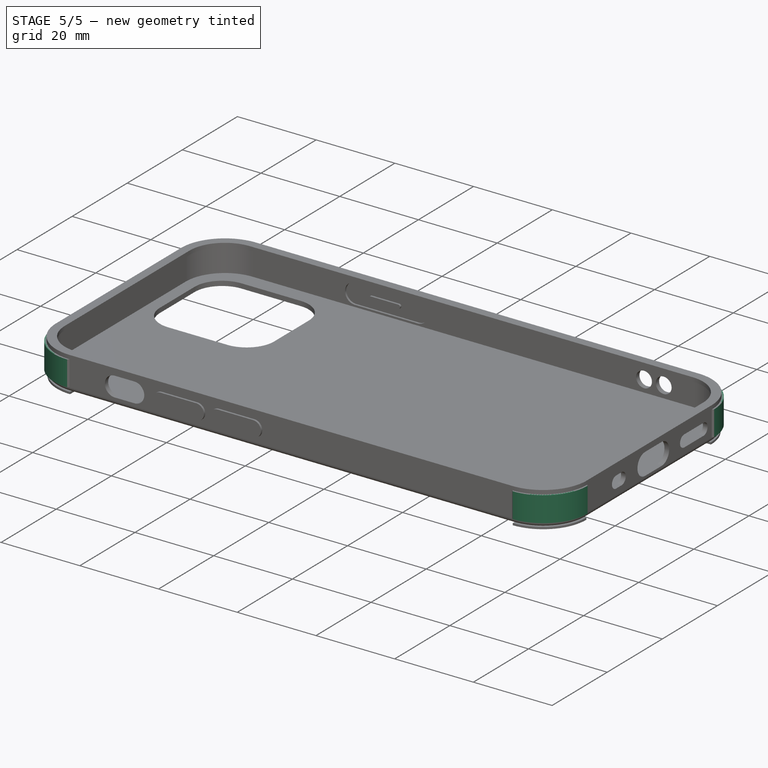
[diagram: stage 5 of 5 — iso view after this stage's code; geometry added in this stage tinted green]
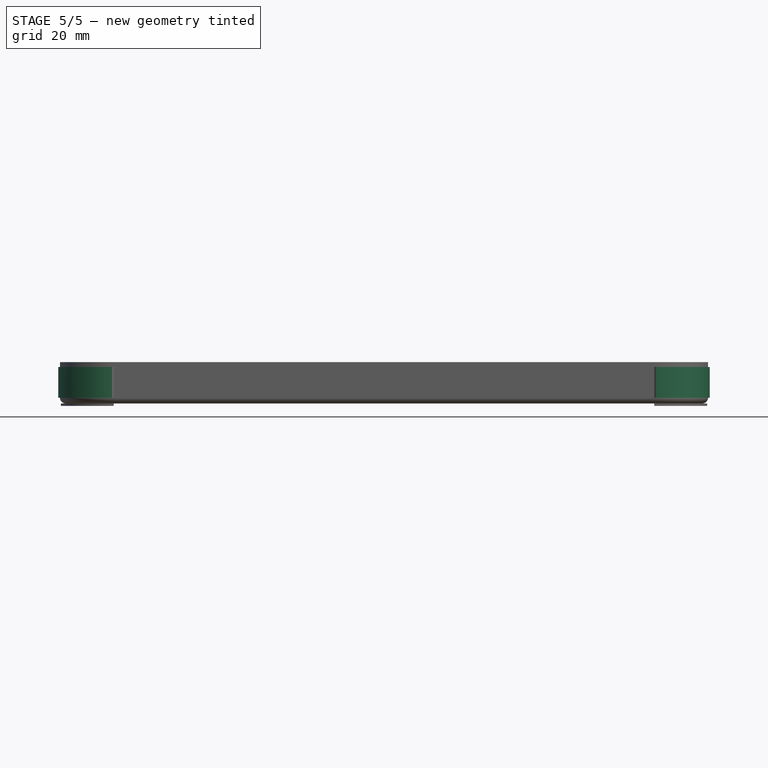
[diagram: stage 5 of 5 — front view after this stage's code; geometry added in this stage tinted green]
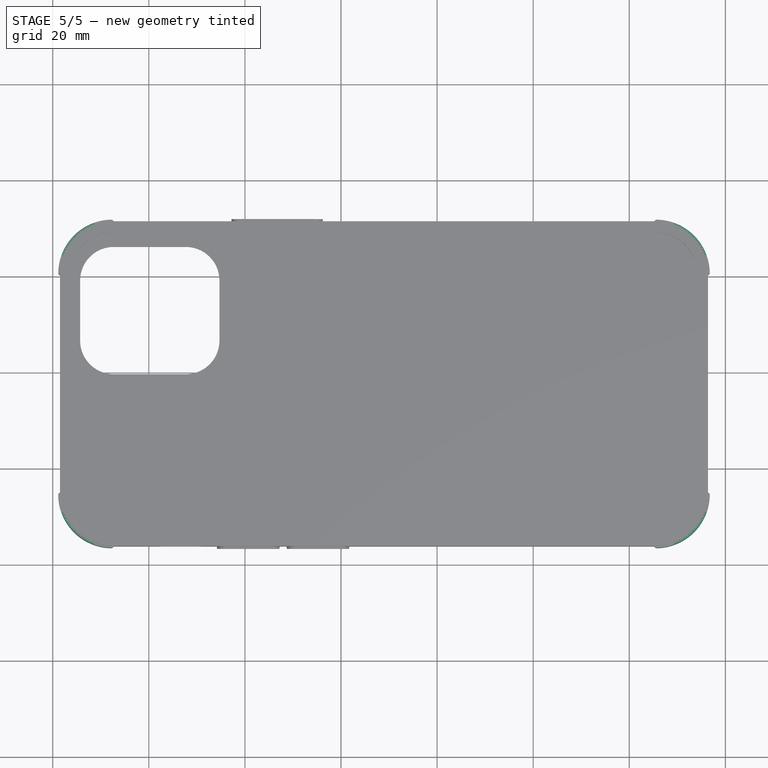
[diagram: stage 5 of 5 — top view after this stage's code; geometry added in this stage tinted green]
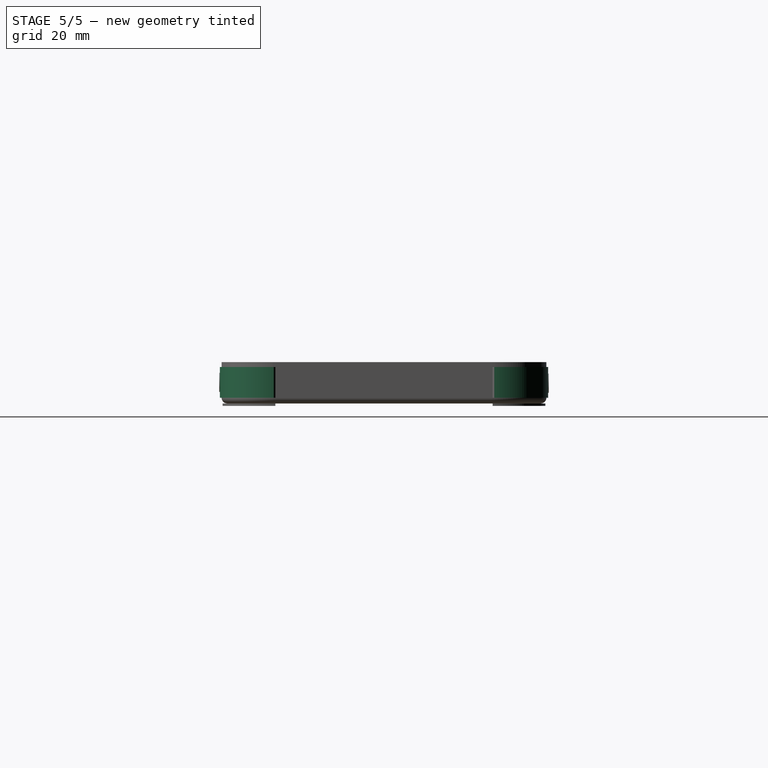
[diagram: stage 5 of 5 — right view after this stage's code; geometry added in this stage tinted green]
FEATURE [PartDesign::Pad] Pad008
  BaseFeature = -> Pad007
  Direction = (1,1,1)
  Length = 0.5
  Length2 = 100
  Profile = -> Pad007 [Face82]
  Type = 0
FEATURE [PartDesign::Pad] Pad009
  BaseFeature = -> Pad008
  Direction = (1,1,1)
  Length = 0.5
  Length2 = 100
  Profile = -> Pad008 [Face63]
  Type = 0
FEATURE [PartDesign::Pad] Pad010
  BaseFeature = -> Pad009
  Direction = (1,1,1)
  Length = 0.5
  Length2 = 100
  Profile = -> Pad009 [Face62]
  Type = 0
FEATURE [PartDesign::Pad] Pad011
  BaseFeature = -> Pad010
  Direction = (1,1,1)
  Length = 0.5
  Length2 = 100
  Profile = -> Pad010 [Face99]
  Type = 0
FEATURE [PartDesign::Body] Body
  Group = -> [Sketch001,Pad,Thickness,Sketch002,Pad001,Sketch004,Pocket001,Sketch005,Sketch006,Pocket002,Sketch007,Sketch008,Pocket003,Pad002,Sketch009,Pad003,Sketch010,Pocket004,Pocket005,Sketch012,Pocket006,Sketch,Pad004,Sketch013,Pad005,Sketch014,Pad006,Sketch015,Pad007,Pad008,Pad009,Pad010,Pad011]
  Origin = -> Origin
  Tip = -> Pad011
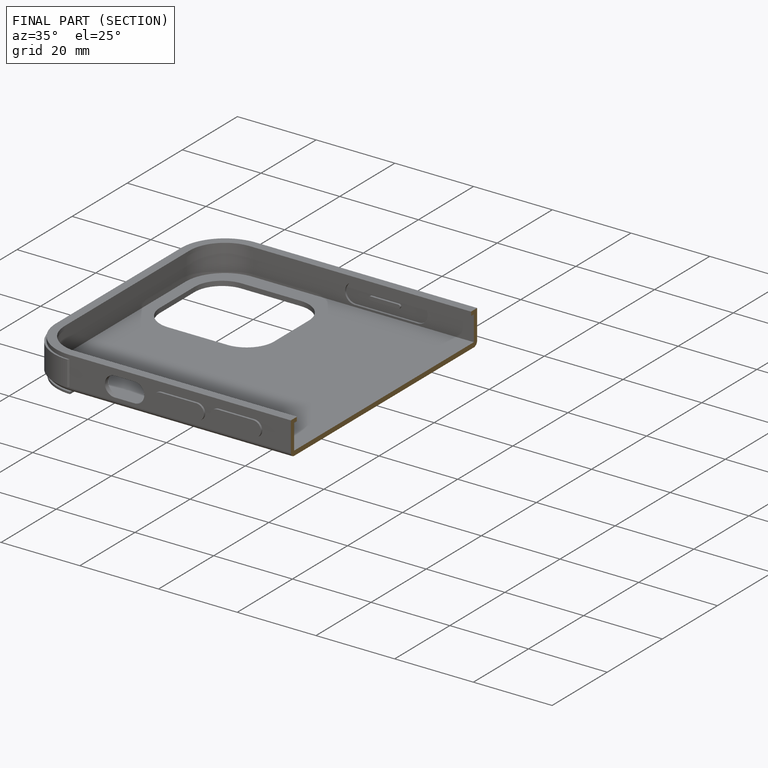
[diagram: finished part — half-section view (interior)]
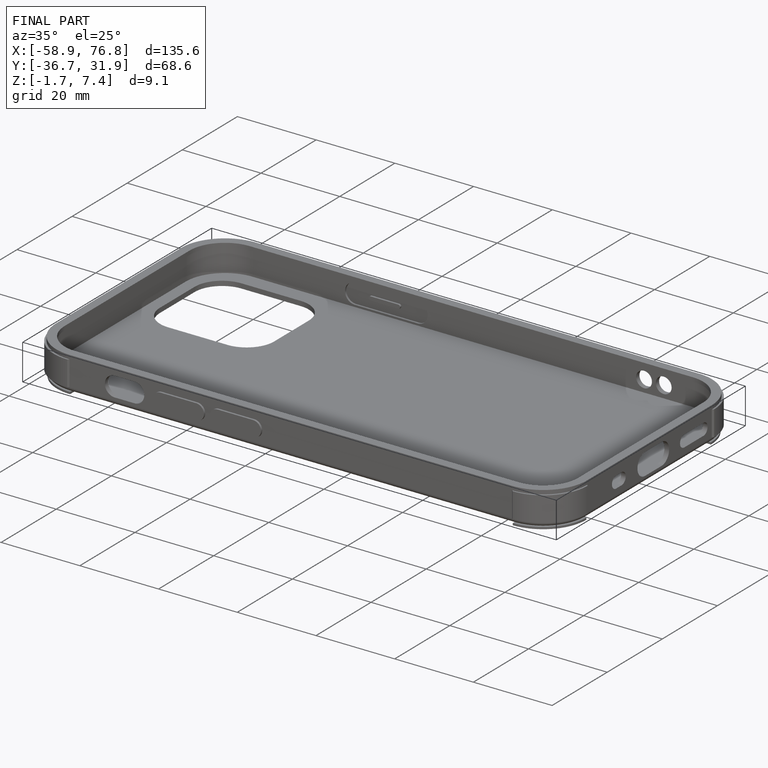
[diagram: finished part — iso view with bounding-box wireframe]
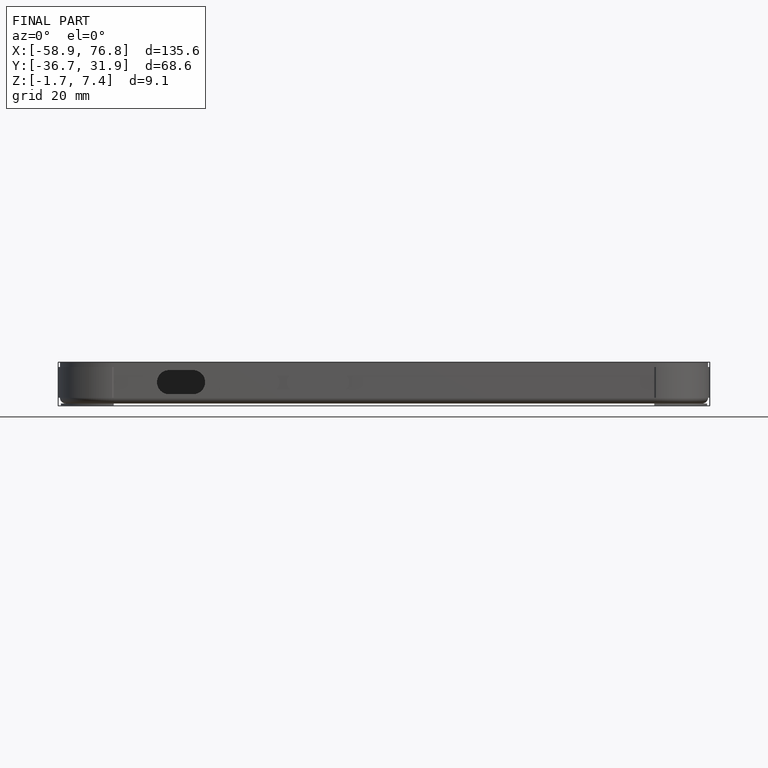
[diagram: finished part — front view with bounding-box wireframe]
